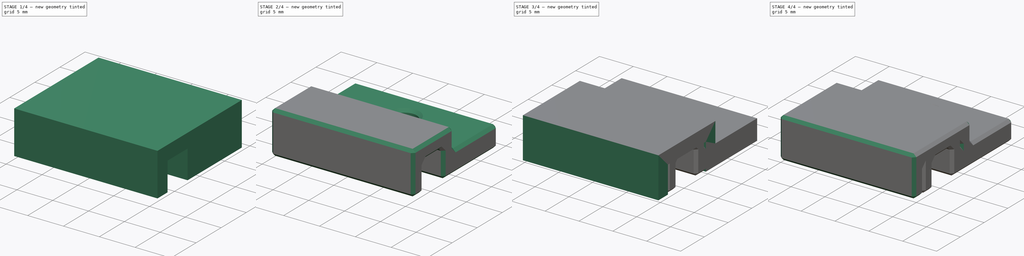
[diagram: build sequence overview — one tinted view per stage of 4, left to right]
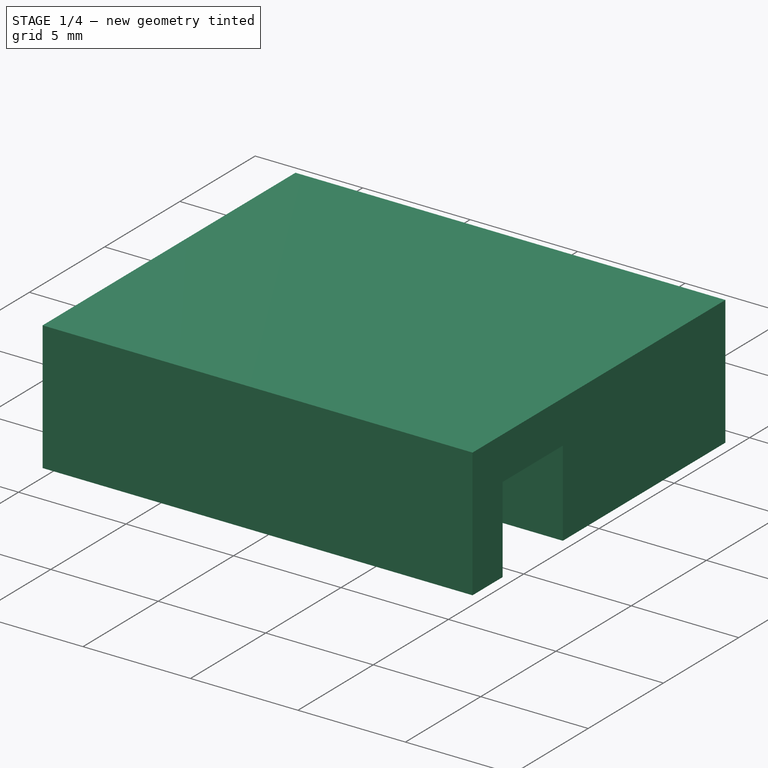
[diagram: stage 1 of 4 — iso view after this stage's code; geometry added in this stage tinted green]
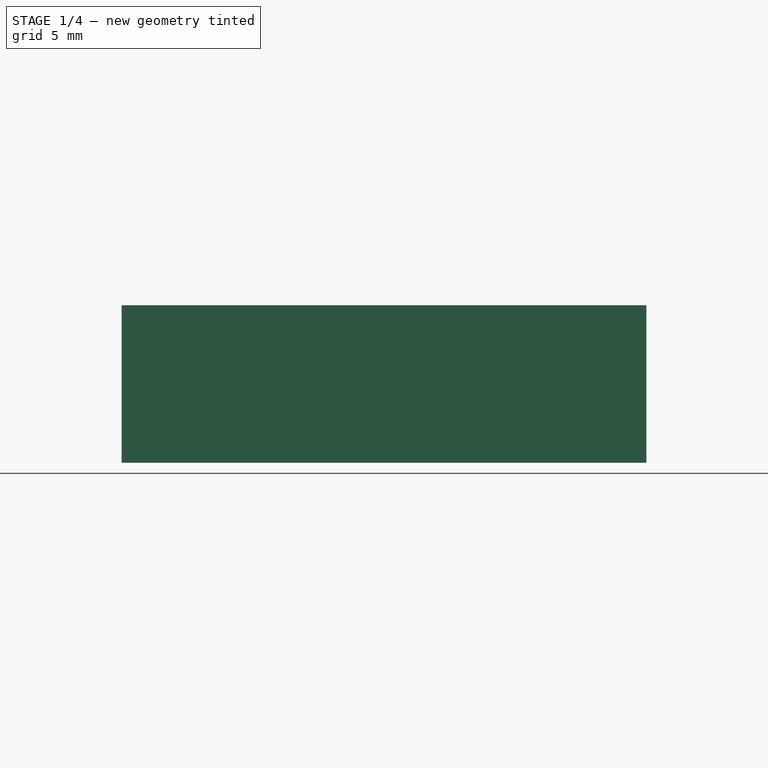
[diagram: stage 1 of 4 — front view after this stage's code; geometry added in this stage tinted green]
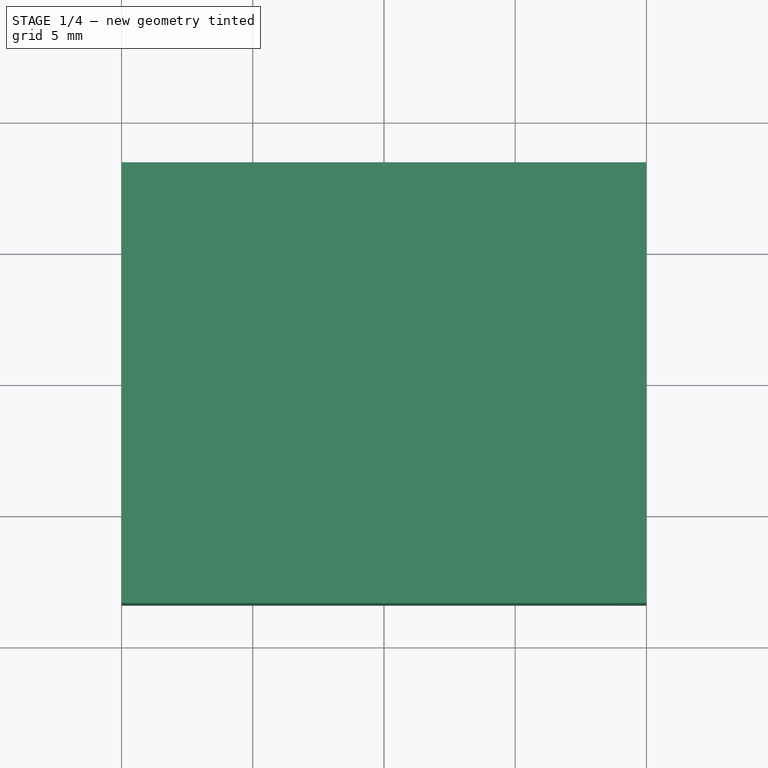
[diagram: stage 1 of 4 — top view after this stage's code; geometry added in this stage tinted green]
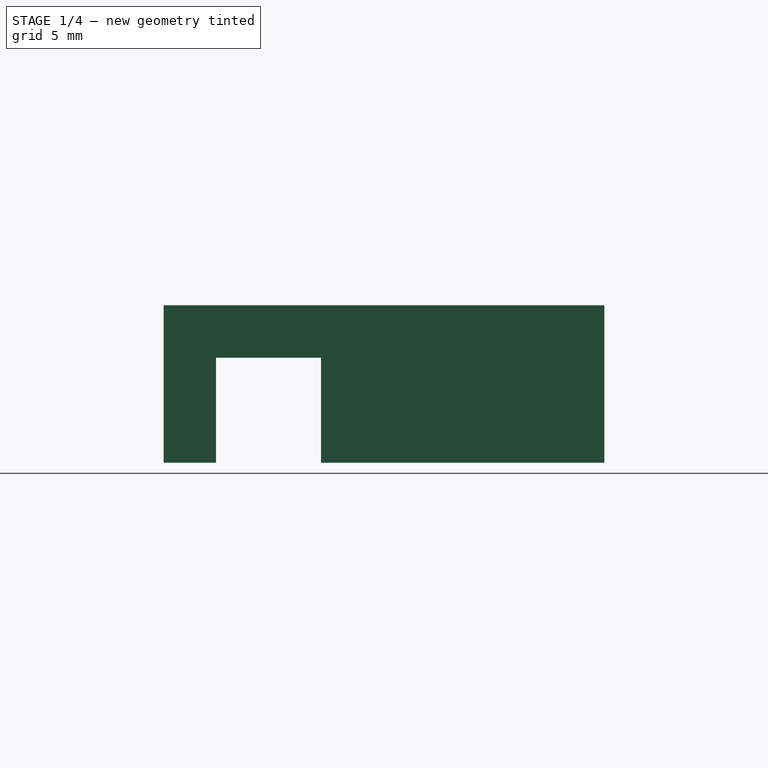
[diagram: stage 1 of 4 — right view after this stage's code; geometry added in this stage tinted green]
FCSTD DOCUMENT  (FreeCAD 0.22R36958 (Git))
Label: romex clips
License: All rights reserved
LicenseURL: http://en.wikipedia.org/wiki/All_rights_reserved
objects: Sketcher::SketchObject×8, PartDesign::Pocket×6, Spreadsheet::Sheet×2, PartDesign::Pad×2, PartDesign::Chamfer×2, PartDesign::Body×2, App::Part×1
note: 30 computed .brp shape members not serialized (recipe doc carries the construction recipe); baked Part::Feature solids carry a one-line shape summary decoded from their .brp

FEATURE [PartDesign::Body] Body  label="14-2 romex"
  Group = -> [Sketch,Pad,Sketch001,Pocket,Sketch002,Pocket001,Sketch003,Pocket002,Chamfer]
  Origin = -> Origin001
  Tip = -> Chamfer
FEATURE [App::Part] Part
  Group = -> [Body]
  Origin = -> Origin
FEATURE [Sketcher::SketchObject] Sketch004
  AttachmentSupport = -> [XY_Plane002]
  FullyConstrained = true
  MapMode = 5
  expr: Constraints[8] = <<q001>>.clip_length
  expr: Constraints[9] = <<q001>>.clip_width
  sketch-geometry (4):
    g0: LineSegment StartX=-10 StartY=8.4 StartZ=0 EndX=10 EndY=8.4 EndZ=0
    g1: LineSegment StartX=10 StartY=8.4 StartZ=0 EndX=10 EndY=-8.4 EndZ=0
    g2: LineSegment StartX=10 StartY=-8.4 StartZ=0 EndX=-10 EndY=-8.4 EndZ=0
    g3: LineSegment StartX=-10 StartY=-8.4 StartZ=0 EndX=-10 EndY=8.4 EndZ=0
  constraints (11):
    c: Coincident(g0,g1)
    c: Coincident(g1,g2)
    c: Coincident(g2,g3)
    c: Coincident(g3,g0)
    c: Horizontal(g0)
    c: Horizontal(g2)
    c: Vertical(g1)
    c: Vertical(g3)
    c: DistanceX(g0,g0) = 20
    c: DistanceY(g1,g1) = 16.8
    c: Symmetric(g0,g1,g-1)
FEATURE [PartDesign::Pad] Pad001
  Direction = (0,0,1)
  Length = 6
  Length2 = 10
  Profile = -> Sketch004
  ReferenceAxis = -> Sketch004 [N_Axis]
  Suppressed = false
  Type = 0
  expr: Length = <<q001>>.clip_height
FEATURE [Sketcher::SketchObject] Sketch005
  AttachmentSupport = -> [Pad001]
  ExternalGeometry = -> [Pad001]
  FullyConstrained = true
  MapMode = 5
  Placement = pos=(10,0,0) rot=(0.57735,0.57735,0.57735;2.0944rad)
  expr: Constraints[10] = <<q001>>.wall
  expr: Constraints[8] = <<q001>>.wire_height
  expr: Constraints[9] = <<q001>>.wire_width
  sketch-geometry (4):
    g0: LineSegment StartX=-6.4 StartY=4 StartZ=0 EndX=-2.4 EndY=4 EndZ=0
    g1: LineSegment StartX=-2.4 StartY=4 StartZ=0 EndX=-2.4 EndY=0 EndZ=0
    g2: LineSegment StartX=-2.4 StartY=-1e-16 StartZ=0 EndX=-6.4 EndY=-1e-16 EndZ=0
    g3: LineSegment StartX=-6.4 StartY=-1e-16 StartZ=0 EndX=-6.4 EndY=4 EndZ=0
  constraints (12):
    c: Coincident(g0,g1)
    c: Coincident(g1,g2)
    c: Coincident(g2,g3)
    c: Coincident(g3,g0)
    c: Horizontal(g0)
    c: Horizontal(g2)
    c: Vertical(g1)
    c: Vertical(g3)
    c: DistanceY(g1,g1) = 4
    c: DistanceX(g2,g2) = 4
    c: DistanceX(g-3,g2) = 2
    c: PointOnObject(g2,g-1)
FEATURE [PartDesign::Pocket] Pocket003
  BaseFeature = -> Pad001
  Direction = (-1,0,0)
  Length = 0
  Length2 = 5
  Profile = -> Sketch005
  ReferenceAxis = -> Sketch005 [N_Axis]
  Suppressed = false
  Type = 3
  UpToFace = -> Pad001 [Face4]
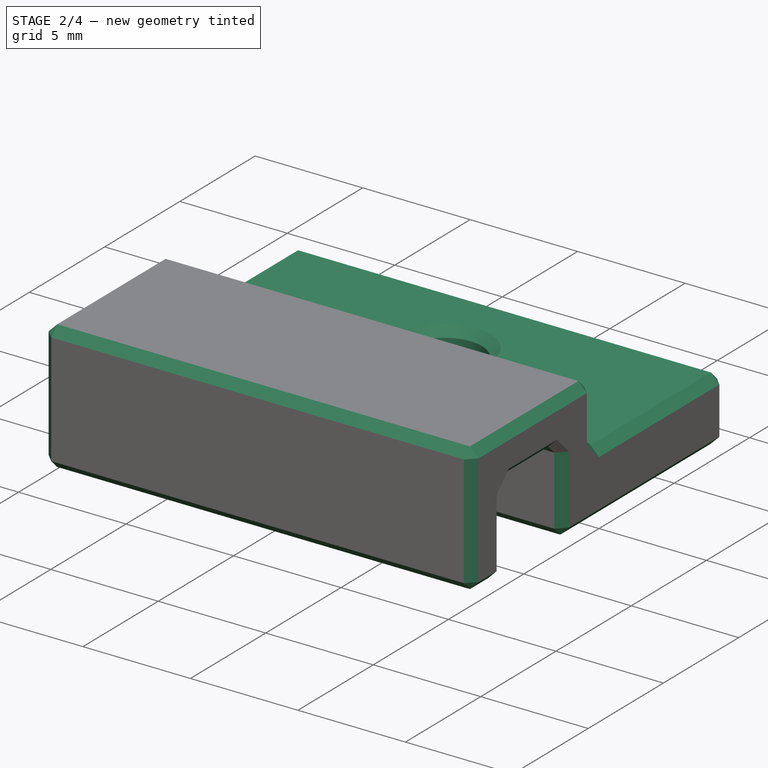
[diagram: stage 2 of 4 — iso view after this stage's code; geometry added in this stage tinted green]
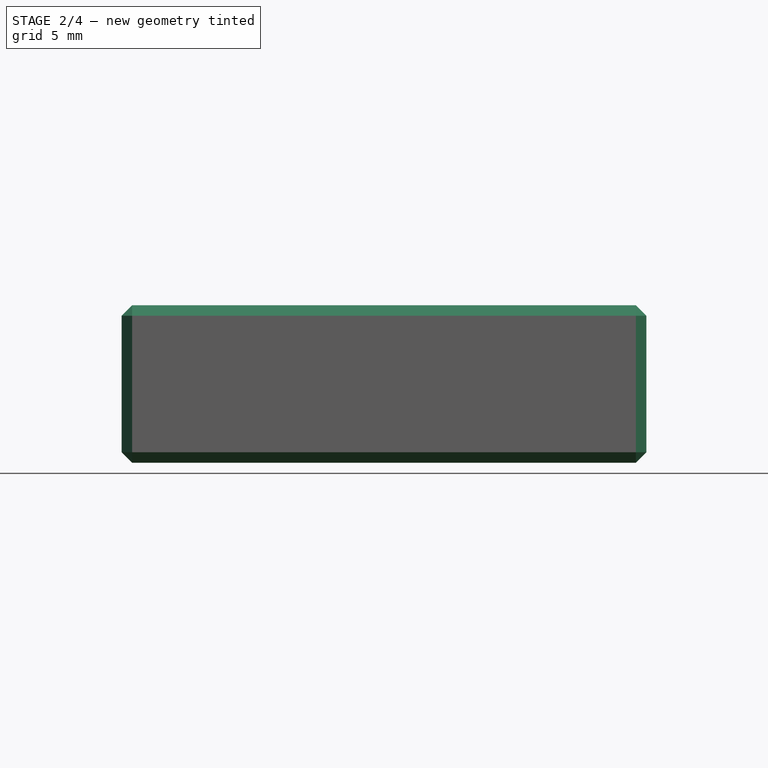
[diagram: stage 2 of 4 — front view after this stage's code; geometry added in this stage tinted green]
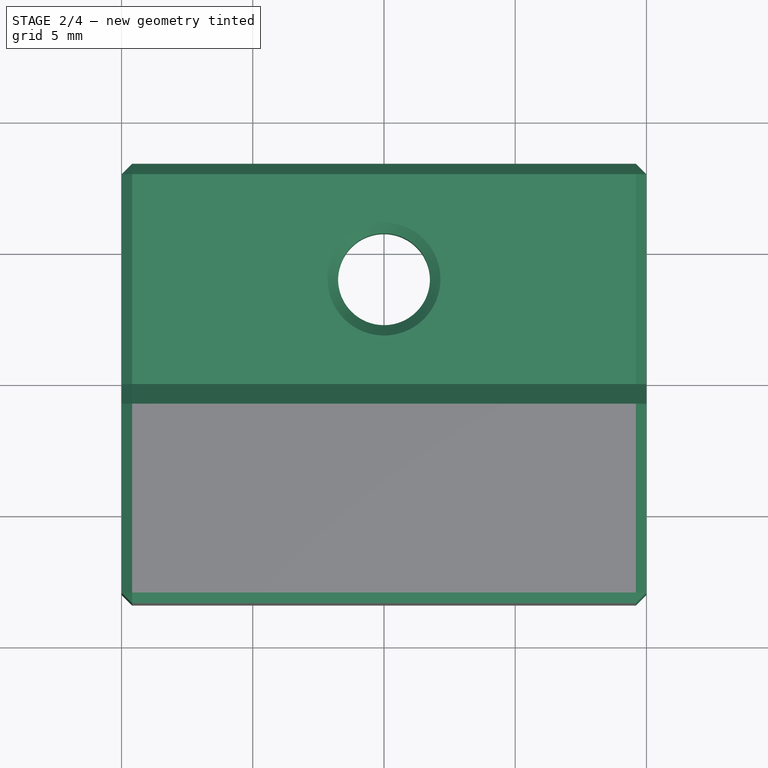
[diagram: stage 2 of 4 — top view after this stage's code; geometry added in this stage tinted green]
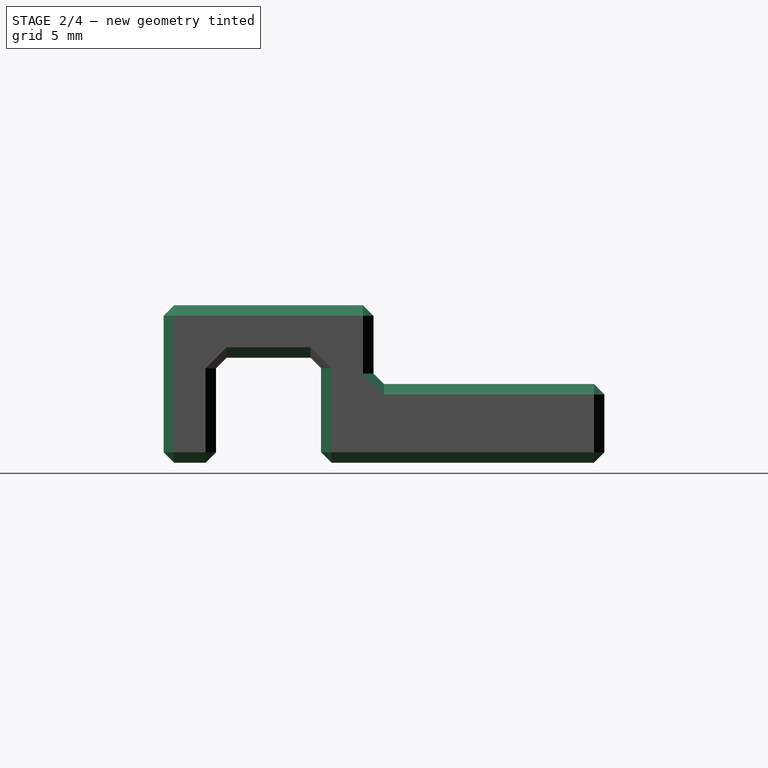
[diagram: stage 2 of 4 — right view after this stage's code; geometry added in this stage tinted green]
FEATURE [Sketcher::SketchObject] Sketch006
  AttachmentSupport = -> [Pocket003]
  ExternalGeometry = -> [Pocket003]
  FullyConstrained = true
  MapMode = 5
  Placement = pos=(0,0,6) rot=(0,0,1;0rad)
  expr: Constraints[10] = <<q001>>.wall
  sketch-geometry (4):
    g0: LineSegment StartX=-10 StartY=8.4 StartZ=0 EndX=10 EndY=8.4 EndZ=0
    g1: LineSegment StartX=10 StartY=8.4 StartZ=0 EndX=10 EndY=-0.4 EndZ=0
    g2: LineSegment StartX=10 StartY=-0.4 StartZ=0 EndX=-10 EndY=-0.4 EndZ=0
    g3: LineSegment StartX=-10 StartY=-0.4 StartZ=0 EndX=-10 EndY=8.4 EndZ=0
  constraints (12):
    c: Coincident(g0,g1)
    c: Coincident(g1,g2)
    c: Coincident(g2,g3)
    c: Coincident(g3,g0)
    c: Horizontal(g0)
    c: Horizontal(g2)
    c: Vertical(g1)
    c: Vertical(g3)
    c: Coincident(g0,g-3)
    c: DistanceY(g-4,g-4) = 16.8
    c: DistanceY(g-5,g1) = 2
    c: PointOnObject(g1,g-4)
FEATURE [PartDesign::Pocket] Pocket004
  BaseFeature = -> Pocket003
  Direction = (0,0,-1)
  Length = 3
  Length2 = 5
  Profile = -> Sketch006
  ReferenceAxis = -> Sketch006 [N_Axis]
  Suppressed = false
  Type = 0
  expr: Length = <<q001>>.clip_height - <<q001>>.screw_plate
FEATURE [Sketcher::SketchObject] Sketch007
  AttachmentSupport = -> [Pocket004]
  ExternalGeometry = -> [Pocket004]
  FullyConstrained = true
  MapMode = 5
  Placement = pos=(0,0,3) rot=(0,0,1;0rad)
  expr: Constraints[0] = <<q001>>.screw_shaft
  sketch-geometry (1):
    g0: Circle CenterX=1e-15 CenterY=4 CenterZ=0 NormalX=0 NormalY=0 NormalZ=1 AngleXU=0 Radius=1.75
  constraints (2):
    c: Diameter(g0) = 3.5
    c: Symmetric(g-4,g-3,g0)
FEATURE [PartDesign::Pocket] Pocket005
  BaseFeature = -> Pocket004
  Direction = (0,0,-1)
  Length = 0
  Length2 = 5
  Profile = -> Sketch007
  ReferenceAxis = -> Sketch007 [N_Axis]
  Suppressed = false
  Type = 3
  UpToFace = -> Pocket004 [Face2]
FEATURE [PartDesign::Chamfer] Chamfer001
  Angle = 45
  Base = -> Pocket005 [Face12,Face4,Face3,Face5,Face11,Face2,Face10,Face8]
  BaseFeature = -> Pocket005
  ChamferType = 0
  FlipDirection = false
  Size = 0.4
  Size2 = 1
  SupportTransform = false
  Suppressed = false
  UseAllEdges = false
FEATURE [PartDesign::Body] Body001  label="4 18gauge wires"
  Group = -> [Sketch004,Pad001,Sketch005,Pocket003,Sketch006,Pocket004,Sketch007,Pocket005,Chamfer001]
  Origin = -> Origin002
  Tip = -> Chamfer001
FEATURE [Spreadsheet::Sheet] Spreadsheet001  label="q001"
  cells = A1='wire height; B1(wire_height)=4; A2='wire width; B2(wire_width)=4; A4='screw shaft; B4(screw_shaft)=3.5; A5='screw head; B5(screw_head)=6.8; A6='screw plate; B6(screw_plate)=3; A8='wall; B8(wall)=2; A9='margin; B9(margin)=2; A11='clip width; B11(clip_width)==wire_width + 3 * wall + screw_head; D11='across the wire; A12='clip length; B12(clip_length)=20; D12='along the wire; A13='clip height; B13(clip_height)==wire_height + wall
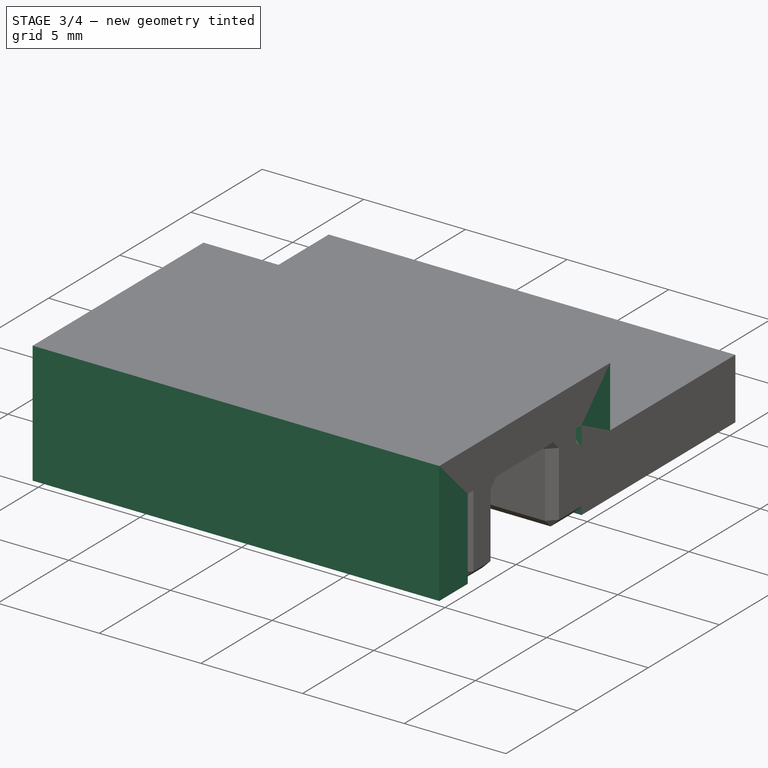
[diagram: stage 3 of 4 — iso view after this stage's code; geometry added in this stage tinted green]
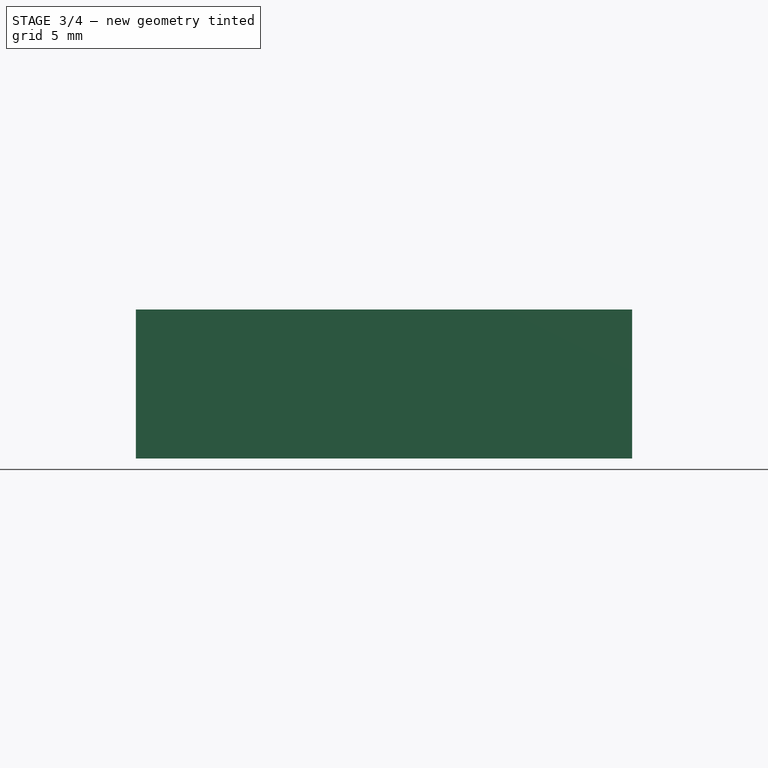
[diagram: stage 3 of 4 — front view after this stage's code; geometry added in this stage tinted green]
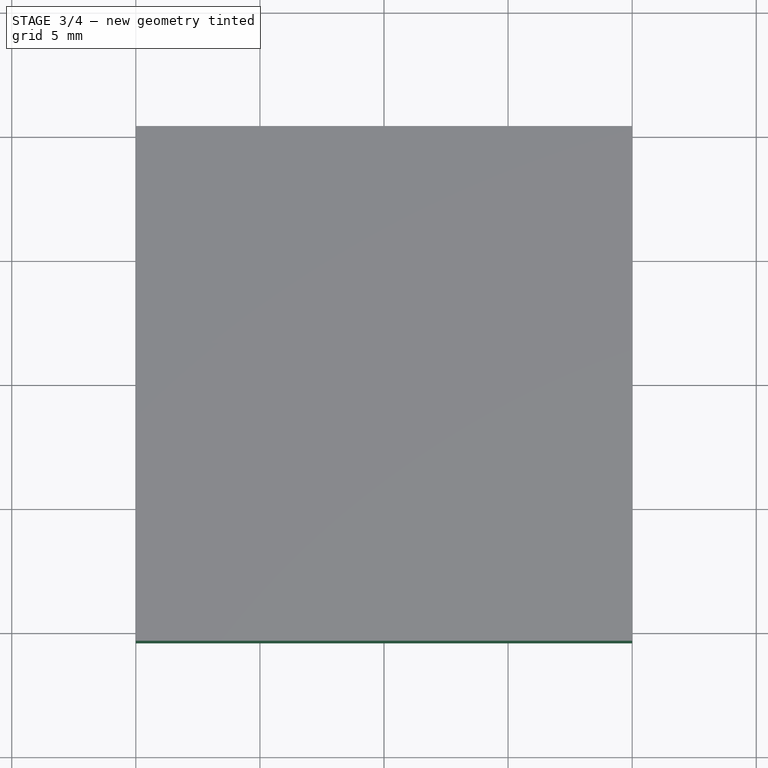
[diagram: stage 3 of 4 — top view after this stage's code; geometry added in this stage tinted green]
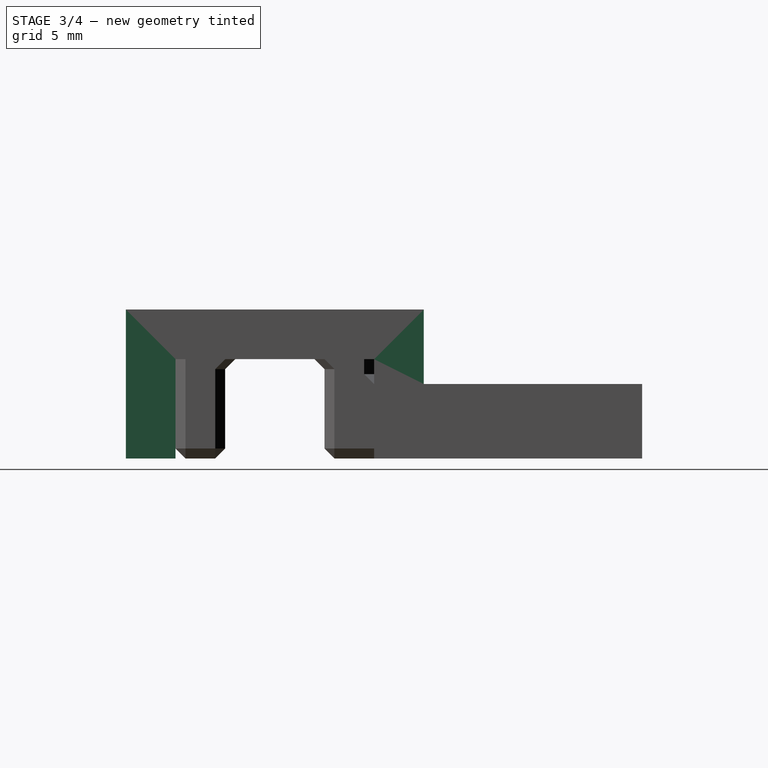
[diagram: stage 3 of 4 — right view after this stage's code; geometry added in this stage tinted green]
FEATURE [Sketcher::SketchObject] Sketch
  AttachmentSupport = -> [XY_Plane001]
  FullyConstrained = true
  MapMode = 5
  expr: Constraints[8] = <<q>>.clip_length
  expr: Constraints[9] = <<q>>.clip_width
  sketch-geometry (4):
    g0: LineSegment StartX=-10 StartY=10.4 StartZ=0 EndX=10 EndY=10.4 EndZ=0
    g1: LineSegment StartX=10 StartY=10.4 StartZ=0 EndX=10 EndY=-10.4 EndZ=0
    g2: LineSegment StartX=10 StartY=-10.4 StartZ=0 EndX=-10 EndY=-10.4 EndZ=0
    g3: LineSegment StartX=-10 StartY=-10.4 StartZ=0 EndX=-10 EndY=10.4 EndZ=0
  constraints (11):
    c: Coincident(g0,g1)
    c: Coincident(g1,g2)
    c: Coincident(g2,g3)
    c: Coincident(g3,g0)
    c: Horizontal(g0)
    c: Horizontal(g2)
    c: Vertical(g1)
    c: Vertical(g3)
    c: DistanceX(g0,g0) = 20
    c: DistanceY(g1,g1) = 20.8
    c: Symmetric(g0,g1,g-1)
FEATURE [Spreadsheet::Sheet] Spreadsheet  label="q"
  cells = A1='wire height; B1(wire_height)=4; A2='wire width; B2(wire_width)=8; A4='screw shaft; B4(screw_shaft)=3.5; A5='screw head; B5(screw_head)=6.8; A6='screw plate; B6(screw_plate)=3; A8='wall; B8(wall)=2; A9='margin; B9(margin)=2; A11='clip width; B11(clip_width)==wire_width + 3 * wall + screw_head; D11='across the wire; A12='clip length; B12(clip_length)=20; D12='along the wire; A13='clip height; B13(clip_height)==wire_height + wall
FEATURE [PartDesign::Pad] Pad
  Direction = (0,0,1)
  Length = 6
  Length2 = 10
  Profile = -> Sketch
  ReferenceAxis = -> Sketch [N_Axis]
  Suppressed = false
  Type = 0
  expr: Length = <<q>>.clip_height
FEATURE [Sketcher::SketchObject] Sketch001
  AttachmentSupport = -> [Pad]
  ExternalGeometry = -> [Pad]
  FullyConstrained = true
  MapMode = 5
  Placement = pos=(10,0,0) rot=(0.57735,0.57735,0.57735;2.0944rad)
  expr: Constraints[10] = <<q>>.wall
  expr: Constraints[8] = <<q>>.wire_height
  expr: Constraints[9] = <<q>>.wire_width
  sketch-geometry (4):
    g0: LineSegment StartX=-8.4 StartY=4 StartZ=0 EndX=-0.4 EndY=4 EndZ=0
    g1: LineSegment StartX=-0.4 StartY=4 StartZ=0 EndX=-0.4 EndY=0 EndZ=0
    g2: LineSegment StartX=-0.4 StartY=0 StartZ=0 EndX=-8.4 EndY=0 EndZ=0
    g3: LineSegment StartX=-8.4 StartY=0 StartZ=0 EndX=-8.4 EndY=4 EndZ=0
  constraints (12):
    c: Coincident(g0,g1)
    c: Coincident(g1,g2)
    c: Coincident(g2,g3)
    c: Coincident(g3,g0)
    c: Horizontal(g0)
    c: Horizontal(g2)
    c: Vertical(g1)
    c: Vertical(g3)
    c: DistanceY(g1,g1) = 4
    c: DistanceX(g2,g2) = 8
    c: DistanceX(g-3,g2) = 2
    c: PointOnObject(g2,g-1)
FEATURE [PartDesign::Pocket] Pocket
  BaseFeature = -> Pad
  Direction = (-1,0,0)
  Length = 0
  Length2 = 5
  Profile = -> Sketch001
  ReferenceAxis = -> Sketch001 [N_Axis]
  Suppressed = false
  Type = 3
  UpToFace = -> Pad [Face4]
FEATURE [Sketcher::SketchObject] Sketch002
  AttachmentSupport = -> [Pocket]
  ExternalGeometry = -> [Pocket]
  FullyConstrained = true
  MapMode = 5
  Placement = pos=(0,0,6) rot=(0,0,1;0rad)
  expr: Constraints[10] = <<q>>.wall
  sketch-geometry (4):
    g0: LineSegment StartX=-10 StartY=10.4 StartZ=0 EndX=10 EndY=10.4 EndZ=0
    g1: LineSegment StartX=10 StartY=10.4 StartZ=0 EndX=10 EndY=1.6 EndZ=0
    g2: LineSegment StartX=10 StartY=1.6 StartZ=0 EndX=-10 EndY=1.6 EndZ=0
    g3: LineSegment StartX=-10 StartY=1.6 StartZ=0 EndX=-10 EndY=10.4 EndZ=0
  constraints (12):
    c: Coincident(g0,g1)
    c: Coincident(g1,g2)
    c: Coincident(g2,g3)
    c: Coincident(g3,g0)
    c: Horizontal(g0)
    c: Horizontal(g2)
    c: Vertical(g1)
    c: Vertical(g3)
    c: Coincident(g0,g-3)
    c: DistanceY(g-4,g-4) = 20.8
    c: DistanceY(g-5,g1) = 2
    c: PointOnObject(g1,g-4)
FEATURE [PartDesign::Pocket] Pocket001
  BaseFeature = -> Pocket
  Direction = (0,0,-1)
  Length = 3
  Length2 = 5
  Profile = -> Sketch002
  ReferenceAxis = -> Sketch002 [N_Axis]
  Suppressed = false
  Type = 0
  expr: Length = <<q>>.clip_height - <<q>>.screw_plate
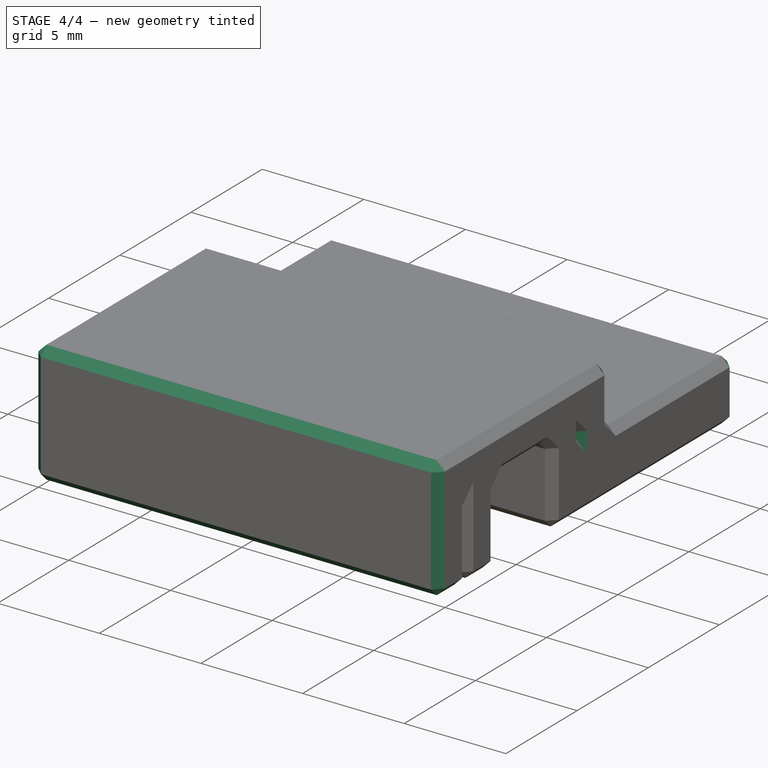
[diagram: stage 4 of 4 — iso view after this stage's code; geometry added in this stage tinted green]
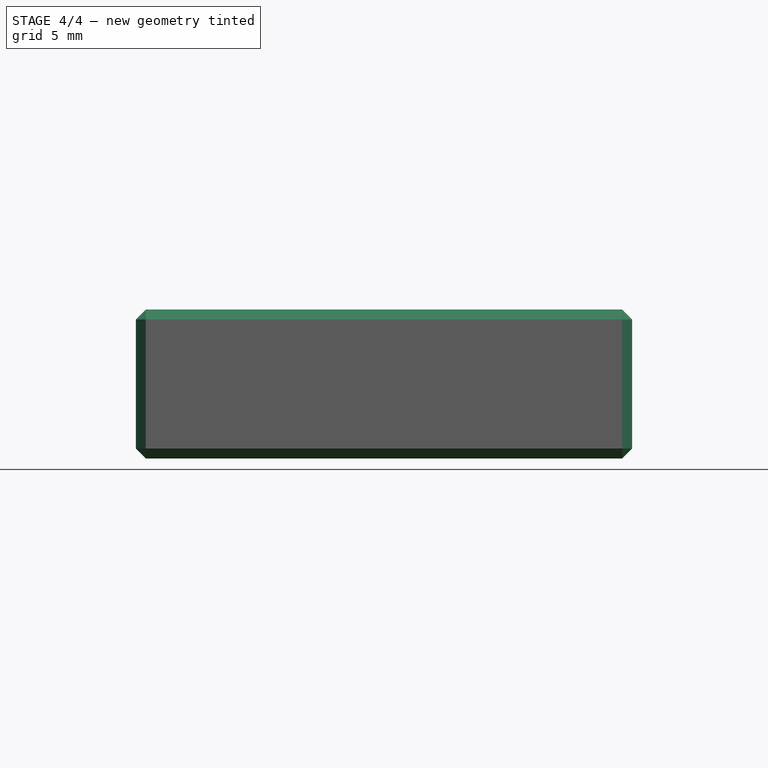
[diagram: stage 4 of 4 — front view after this stage's code; geometry added in this stage tinted green]
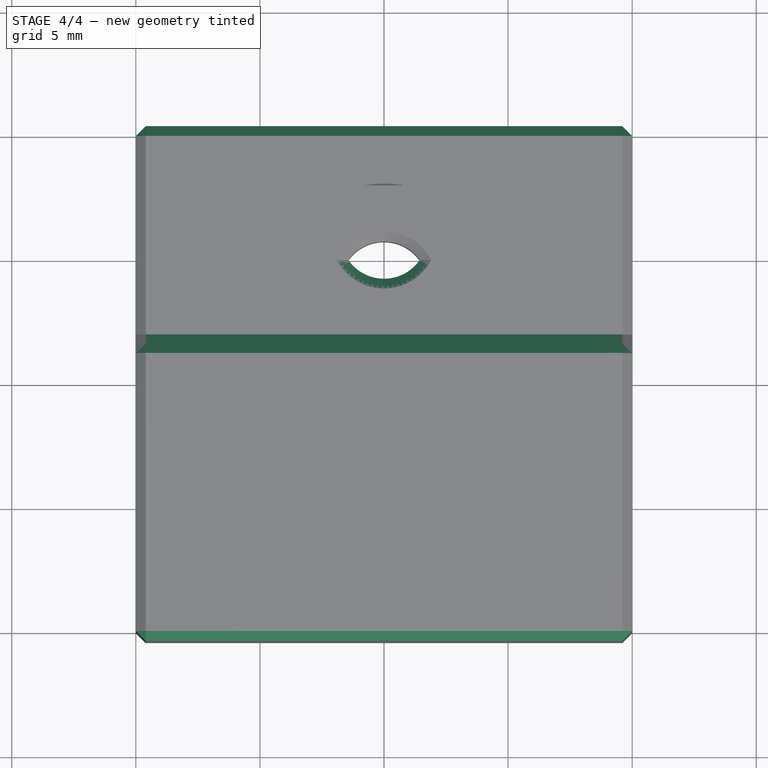
[diagram: stage 4 of 4 — top view after this stage's code; geometry added in this stage tinted green]
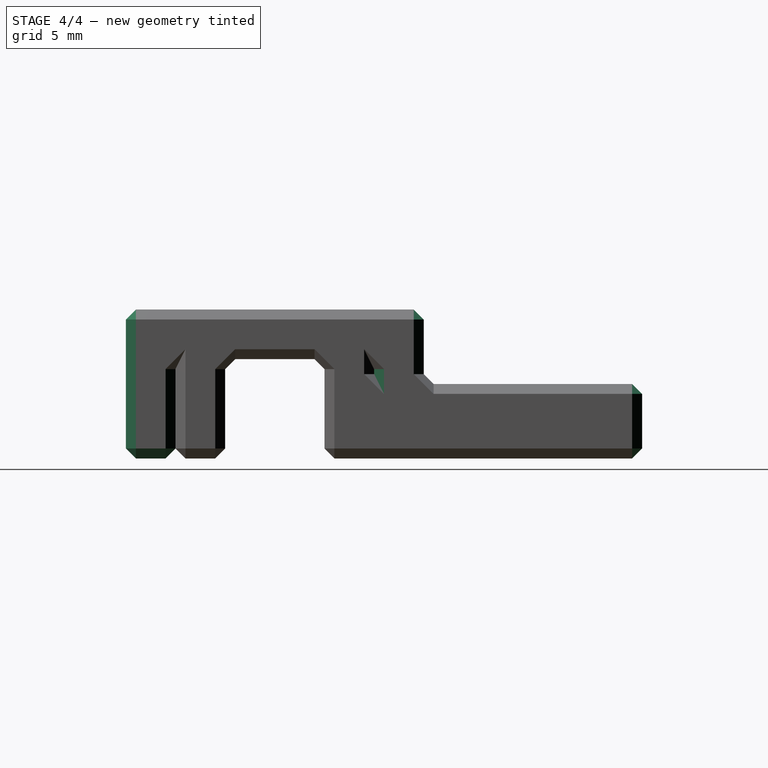
[diagram: stage 4 of 4 — right view after this stage's code; geometry added in this stage tinted green]
FEATURE [Sketcher::SketchObject] Sketch003
  AttachmentSupport = -> [Pocket001]
  ExternalGeometry = -> [Pocket001]
  FullyConstrained = true
  MapMode = 5
  Placement = pos=(0,0,3) rot=(0,0,1;0rad)
  expr: Constraints[0] = <<q>>.screw_shaft
  sketch-geometry (1):
    g0: Circle CenterX=8e-16 CenterY=6 CenterZ=0 NormalX=0 NormalY=0 NormalZ=1 AngleXU=0 Radius=1.75
  constraints (2):
    c: Diameter(g0) = 3.5
    c: Symmetric(g-4,g-3,g0)
FEATURE [PartDesign::Pocket] Pocket002
  BaseFeature = -> Pocket001
  Direction = (0,0,-1)
  Length = 0
  Length2 = 5
  Profile = -> Sketch003
  ReferenceAxis = -> Sketch003 [N_Axis]
  Suppressed = false
  Type = 3
  UpToFace = -> Pocket001 [Face2]
FEATURE [PartDesign::Chamfer] Chamfer
  Angle = 45
  Base = -> Pocket002 [Face12,Face4,Face3,Face5,Face11,Face2,Face10,Face8]
  BaseFeature = -> Pocket002
  ChamferType = 0
  FlipDirection = false
  Size = 0.4
  Size2 = 1
  SupportTransform = false
  Suppressed = false
  UseAllEdges = false
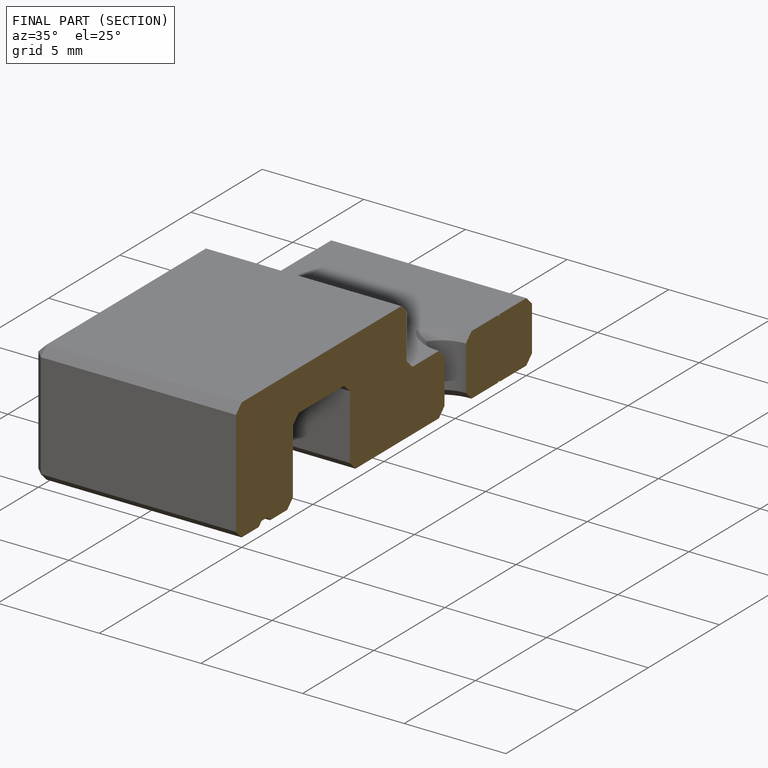
[diagram: finished part — half-section view (interior)]
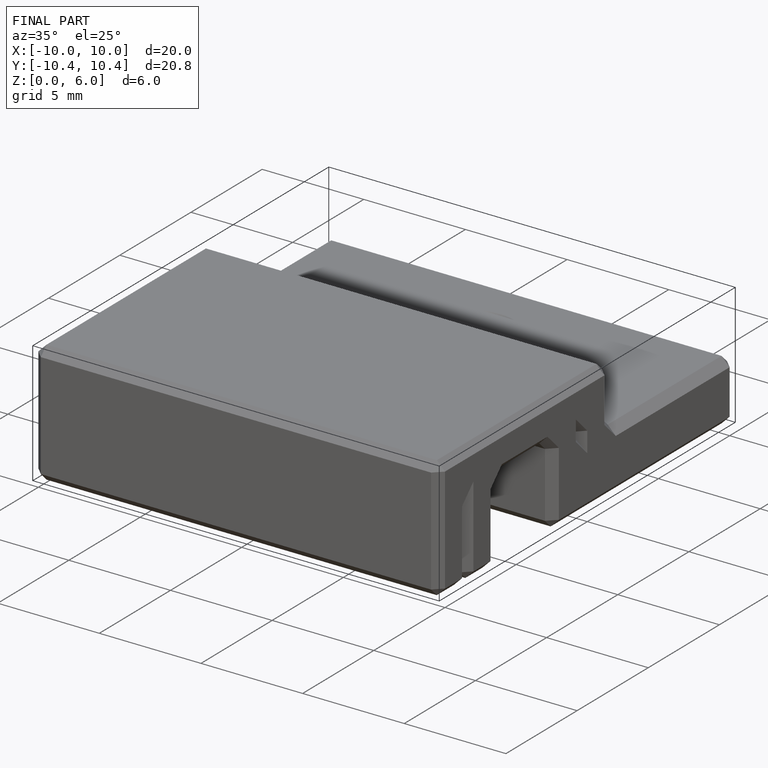
[diagram: finished part — iso view with bounding-box wireframe]
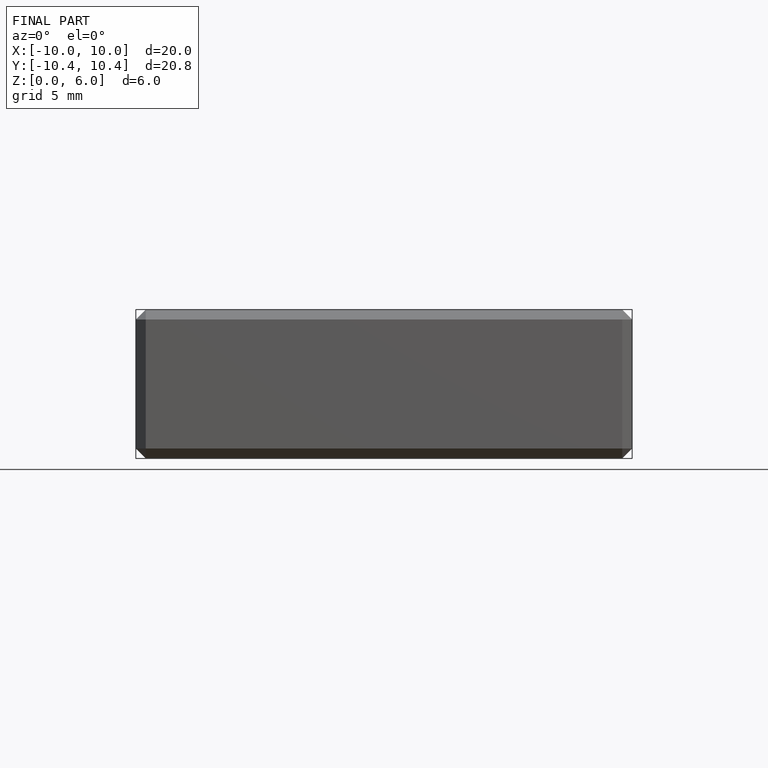
[diagram: finished part — front view with bounding-box wireframe]
